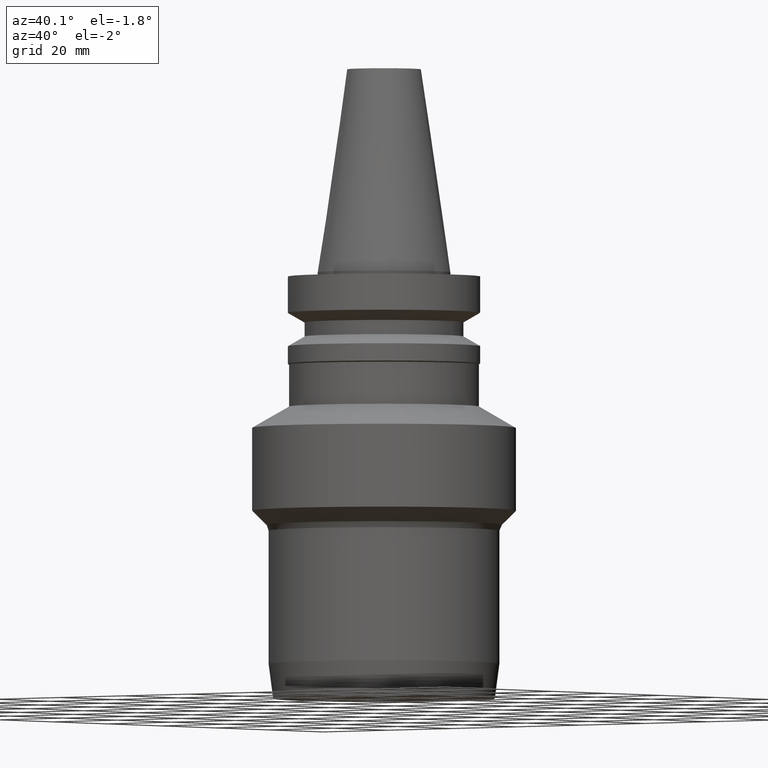
[diagram: clean part render]
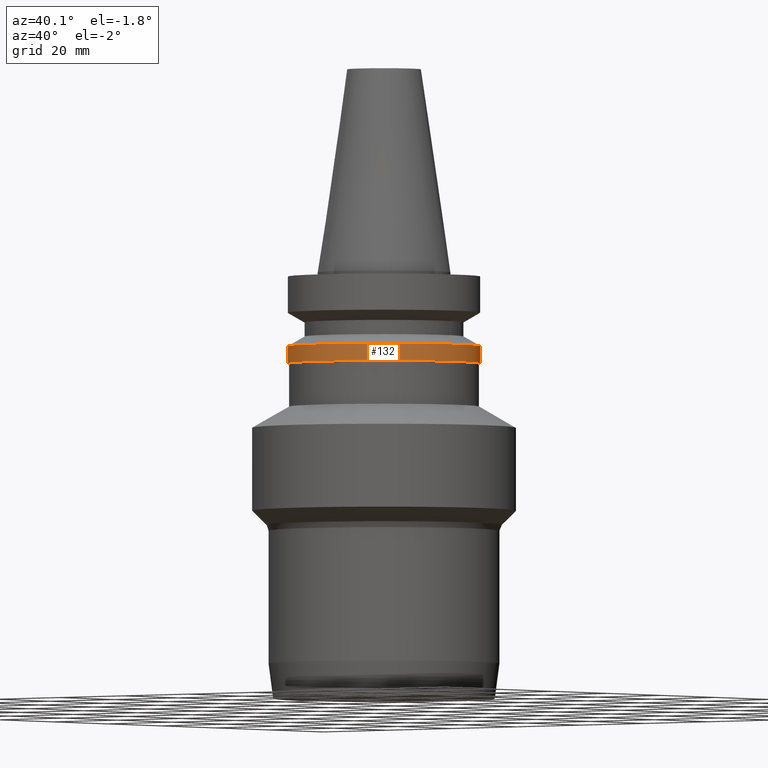
[diagram: same view with one face highlighted and labeled with its STEP entity id]
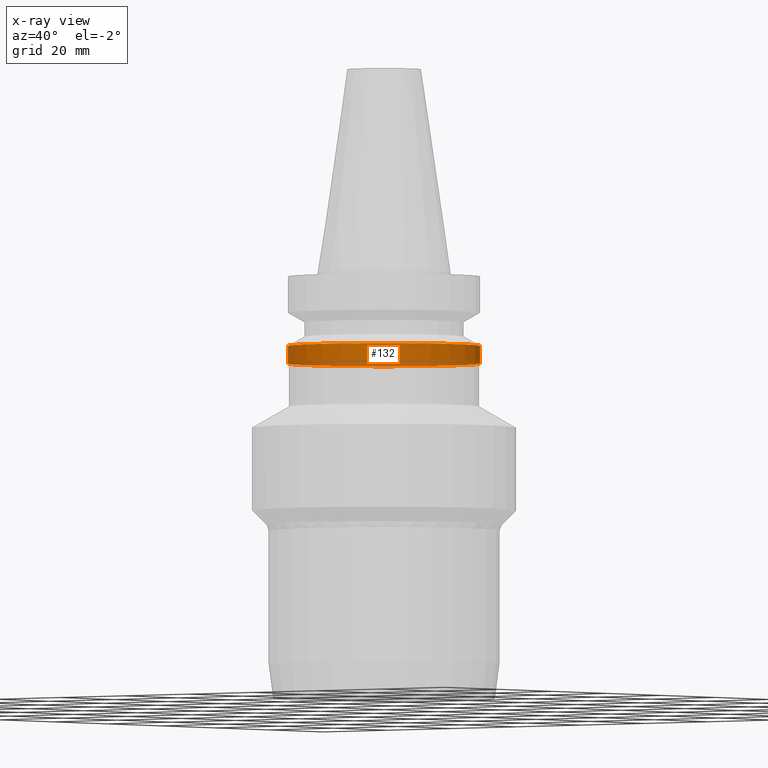
[diagram: x-ray of the same camera — body ghosted, the highlighted face saturated]
A machine part, auxiliary view. The second image highlights one B-rep face of the part: STEP entity #132.
The next image is the same camera in x-ray: the body ghosted, the highlighted face saturated — about 21% of this face is hidden behind the body in this view.
In plain terms, the highlighted cylindrical surface (bore or boss wall) has radius 23 mm, axis along (0, 0, -1).
Its self-contained STEP definition (entity closure, byte-faithful):
#94=EDGE_CURVE('Unnamed[1]',#223,#223,#224,.T.);
#127=EDGE_CURVE('Unnamed[1]',#272,#272,#273,.T.);
#132=ADVANCED_FACE('Unnamed[1]',(#279,#280),#281,.T.);
#223=VERTEX_POINT('',#384);
#224=CIRCLE('',#385,23.0);
#272=VERTEX_POINT('',#446);
#273=CIRCLE('',#447,23.0);
#279=FACE_BOUND('',#455,.T.);
#280=FACE_BOUND('',#456,.T.);
#281=CYLINDRICAL_SURFACE('',#457,23.0);
#384=CARTESIAN_POINT('',(1.32874177707488E-015,23.0,-21.7000000000001));
#385=AXIS2_PLACEMENT_3D('',#558,#559,#560);
#446=CARTESIAN_POINT('',(1.07768918324967E-015,23.0,-17.6));
#447=AXIS2_PLACEMENT_3D('',#609,#610,#611);
#455=EDGE_LOOP('',(#616));
#456=EDGE_LOOP('',(#617));
#457=AXIS2_PLACEMENT_3D('',#618,#619,#620);
#558=CARTESIAN_POINT('',(1.32874177707488E-015,2.65748355414977E-015,-21.7000000000001));
#559=DIRECTION('',(6.12323399573677E-017,1.22464679914716E-016,-1.0));
#560=DIRECTION('',(-1.23259516440783E-032,1.0,1.22464679914716E-016));
#609=CARTESIAN_POINT('',(1.07768918324967E-015,2.15537836649934E-015,-17.6));
#610=DIRECTION('',(6.12323399573677E-017,1.22464679914716E-016,-1.0));
#611=DIRECTION('',(-1.23259516440783E-032,1.0,1.22464679914716E-016));
#616=ORIENTED_EDGE('',*,*,#94,.F.);
#617=ORIENTED_EDGE('',*,*,#127,.T.);
#618=CARTESIAN_POINT('',(1.20321548016228E-015,2.40643096032455E-015,-19.65));
#619=DIRECTION('',(6.12323399573677E-017,1.22464679914716E-016,-1.0));
#620=DIRECTION('',(-1.23259516440783E-032,1.0,1.22464679914716E-016));